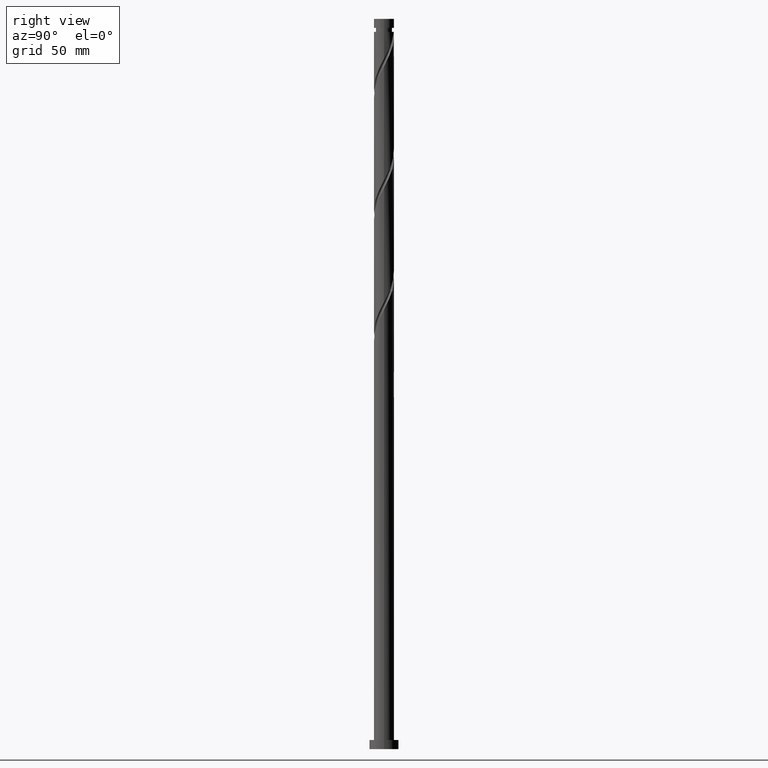
[diagram: clean part render]
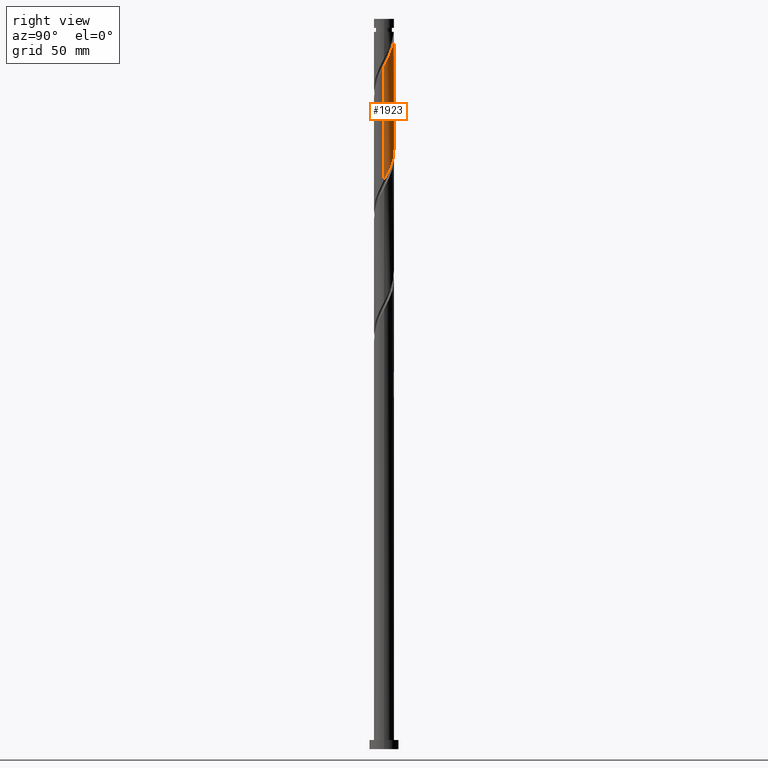
[diagram: same view with one face highlighted and labeled with its STEP entity id]
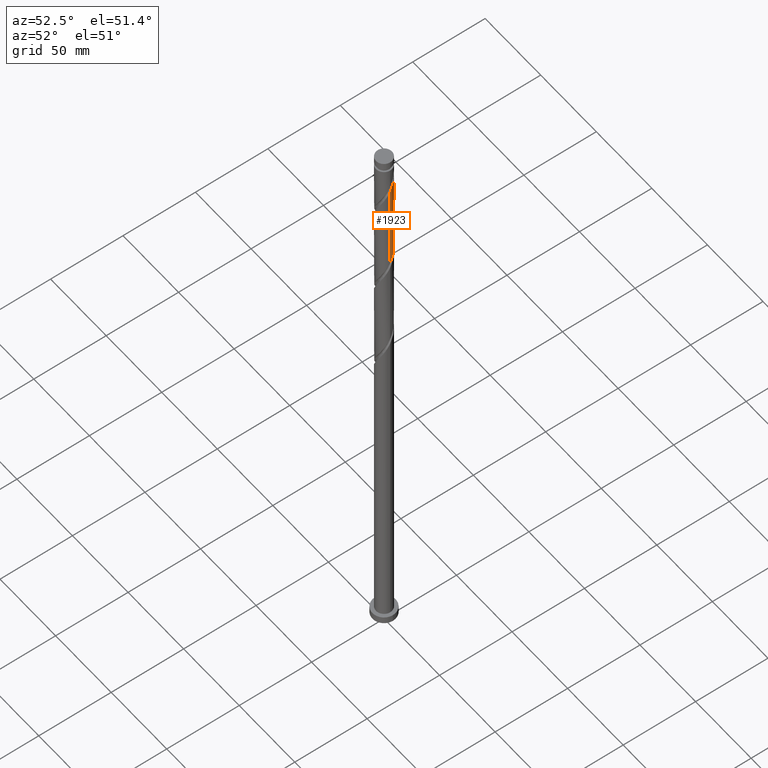
[diagram: same view with one face highlighted and labeled with its STEP entity id]
A machine part, right view. The second image highlights one B-rep face of the part: STEP entity #1923.
A second angle (auxiliary view) of the same face is appended — the face is thin or edge-on in the first view.
In plain terms, the highlighted cylindrical surface (edge-blend (fillet) strip) has radius 5.5 mm, axis along (-0, -0, -1).
Its self-contained STEP definition (entity closure, byte-faithful):
#66 = CARTESIAN_POINT ( 'NONE',  ( -5.500000000000001776, -4.095865825262278103E-15, 344.9724859766018881 ) ) ;
#70 = CARTESIAN_POINT ( 'NONE',  ( -5.499999999999963585, 0.000000000000000000, 392.8470427330803432 ) ) ;
#95 = CARTESIAN_POINT ( 'NONE',  ( -4.120633835989480964, 3.642852836678778239, 337.2914871775248571 ) ) ;
#99 = CARTESIAN_POINT ( 'NONE',  ( 5.474877974583515439, 0.5250820539881335680, 375.0692649553025717 ) ) ;
#132 = VERTEX_POINT ( 'NONE', #191 ) ;
#164 = ORIENTED_EDGE ( 'NONE', *, *, #1800, .T. ) ;
#191 = CARTESIAN_POINT ( 'NONE',  ( 5.500000000000007994, -6.577302785092662656E-16, 374.0549328228921695 ) ) ;
#201 = LINE ( 'NONE', #1450, #1960 ) ;
#218 = DIRECTION ( 'NONE',  ( -1.000000000000000000, 0.000000000000000000, 0.000000000000000000 ) ) ;
#245 = CARTESIAN_POINT ( 'NONE',  ( -5.500000000000001776, -4.095865825262278103E-15, 344.9724859766018881 ) ) ;
#262 = EDGE_CURVE ( 'NONE', #1859, #279, #201, .T. ) ;
#274 = CARTESIAN_POINT ( 'NONE',  ( -2.808638240598027913, 4.764002515389932135, 333.9581538441915427 ) ) ;
#277 = CARTESIAN_POINT ( 'NONE',  ( 2.808638240598036351, 4.764002515389936576, 385.0692649553025149 ) ) ;
#279 = VERTEX_POINT ( 'NONE', #66 ) ;
#292 = CARTESIAN_POINT ( 'NONE',  ( -1.756770938335399102, 5.243846355816629945, 331.7359316219693710 ) ) ;
#358 = EDGE_CURVE ( 'NONE', #1859, #1747, #501, .T. ) ;
#427 = ORIENTED_EDGE ( 'NONE', *, *, #358, .T. ) ;
#436 = CARTESIAN_POINT ( 'NONE',  ( -1.094486180817285215, 5.390000000000004121, 392.8470427330803432 ) ) ;
#454 = CARTESIAN_POINT ( 'NONE',  ( 3.192173385116795714, 4.478842381615138812, 321.7359316219691436 ) ) ;
#457 = CARTESIAN_POINT ( 'NONE',  ( 1.756770938335405763, 5.243846355816634386, 387.2914871775248002 ) ) ;
#501 = CIRCLE ( 'NONE', #1761, 5.499999999999963585 ) ;
#519 = DIRECTION ( 'NONE',  ( -0.000000000000000000, -0.000000000000000000, -1.000000000000000000 ) ) ;
#523 = CARTESIAN_POINT ( 'NONE',  ( 5.419689626847361552, 1.100514916679632860, 376.1803760664137712 ) ) ;
#568 = CARTESIAN_POINT ( 'NONE',  ( 5.500000000000000000, 0.3133555559553879433, 312.2447439526531525 ) ) ;
#570 = DIRECTION ( 'NONE',  ( -0.000000000000000000, -0.000000000000000000, -1.000000000000000000 ) ) ;
#571 = CARTESIAN_POINT ( 'NONE',  ( 5.072446488125613939, 2.203282859347249545, 378.4025982886359998 ) ) ;
#600 = CARTESIAN_POINT ( 'NONE',  ( 0.05007498170499220108, 5.499772040385614957, 390.6248205108581146 ) ) ;
#609 = CARTESIAN_POINT ( 'NONE',  ( 2.721428081721633863, 4.814353324093288755, 322.8470427330804000 ) ) ;
#612 = CARTESIAN_POINT ( 'NONE',  ( -0.5279743527352697141, 5.505035133043659989, 391.7359316219690868 ) ) ;
#615 = CARTESIAN_POINT ( 'NONE',  ( -1.094486180817285215, 5.390000000000004121, 392.8470427330803432 ) ) ;
#622 = CARTESIAN_POINT ( 'NONE',  ( 5.500000000000000000, 5.202048566391506910E-15, 311.6391526432685168 ) ) ;
#635 = AXIS2_PLACEMENT_3D ( 'NONE', #1151, #570, #855 ) ;
#666 = DIRECTION ( 'NONE',  ( -0.000000000000000000, -0.000000000000000000, -1.000000000000000000 ) ) ;
#705 = CARTESIAN_POINT ( 'NONE',  ( 0.000000000000000000, 0.000000000000000000, 392.8470427330803432 ) ) ;
#727 = CARTESIAN_POINT ( 'NONE',  ( -0.6281243161452666479, 5.494508947727561043, 329.5137093997470288 ) ) ;
#737 = CARTESIAN_POINT ( 'NONE',  ( 1.094486180817287657, 5.390000000000000568, 326.1803760664136576 ) ) ;
#748 = CARTESIAN_POINT ( 'NONE',  ( -4.503513097574002089, 3.209756768537233018, 338.4025982886359998 ) ) ;
#758 = CARTESIAN_POINT ( 'NONE',  ( 0.5279743527352899202, 5.505035133043651996, 327.2914871775248002 ) ) ;
#760 = CARTESIAN_POINT ( 'NONE',  ( 3.273196407501500982, 4.419975710105129352, 383.9581538441914859 ) ) ;
#766 = CARTESIAN_POINT ( 'NONE',  ( 5.031487450309294118, 2.295278364506417645, 316.1803760664137712 ) ) ;
#812 = LINE ( 'NONE', #1861, #1498 ) ;
#823 =( BOUNDED_CURVE ( )  B_SPLINE_CURVE ( 2, ( #245, #864, #1473, #1661, #1186, #1511, #1179, #748, #95, #1215, #1197, #274, #1338, #292, #1502, #727, #1999, #758, #737, #1803, #1372, #609, #454, #1349, #882, #1979, #1820, #766, #1063, #1988, #1969, #568, #1642 ),
 .UNSPECIFIED., .F., .F. ) 
 B_SPLINE_CURVE_WITH_KNOTS ( ( 3, 2, 2, 2, 2, 2, 2, 2, 2, 2, 2, 2, 2, 2, 2, 2, 3 ),
 ( 0.4295286012773114614, 0.4333333333333333481, 0.4416666666666666519, 0.4500000000000000111, 0.4583333333333333148, 0.4666666666666666741, 0.4749999999999999778, 0.4833333333333333370, 0.4916666666666666408, 0.5000000000000000000, 0.5083333333333333037, 0.5166666666666667185, 0.5250000000000000222, 0.5333333333333333259, 0.5416666666666666297, 0.5500000000000000444, 0.5545286012773112949 ),
 .UNSPECIFIED. ) 
 CURVE ( )  GEOMETRIC_REPRESENTATION_ITEM ( )  RATIONAL_B_SPLINE_CURVE ( ( 0.9066196499552243715, 0.9068171577856372068, 0.9090909090909361501, 0.9041108139711843128, 0.9090909090909361501, 0.9041108139711843128, 0.9090909090909361501, 0.9041108139711843128, 0.9090909090909361501, 0.9041108139711843128, 0.9090909090909361501, 0.9041108139711843128, 0.9090909090909361501, 0.9041108139711843128, 0.9090909090909361501, 0.9041108139711843128, 0.9090909090909361501, 0.9041108139711843128, 0.9090909090909361501, 0.9041108139711843128, 0.9090909090909361501, 0.9041108139711843128, 0.9090909090909361501, 0.9041108139711843128, 0.9090909090909361501, 0.9041108139711843128, 0.9090909090909361501, 0.9041108139711843128, 0.9090909090909361501, 0.9041108139711843128, 0.9090909090909361501, 0.9063845652764833671, 0.9066196499552243715 ) ) 
 REPRESENTATION_ITEM ( '' )  );
#845 = CYLINDRICAL_SURFACE ( 'NONE', #635, 5.500000000000000000 ) ;
#855 = DIRECTION ( 'NONE',  ( -1.000000000000000000, 0.000000000000000000, 0.000000000000000000 ) ) ;
#864 = CARTESIAN_POINT ( 'NONE',  ( -5.500000000000001776, 0.2631419960771254063, 344.4639374510378502 ) ) ;
#876 = CARTESIAN_POINT ( 'NONE',  ( 5.500000000000009770, 0.2631419960771226307, 374.5634813484562073 ) ) ;
#882 = CARTESIAN_POINT ( 'NONE',  ( 4.053620430246145823, 3.717278763758650406, 319.5137093997468583 ) ) ;
#905 = CARTESIAN_POINT ( 'NONE',  ( 4.120633835989489846, 3.642852836678779127, 381.7359316219692573 ) ) ;
#1063 = CARTESIAN_POINT ( 'NONE',  ( 5.215120016806767289, 1.747147163321217445, 315.0692649553026286 ) ) ;
#1093 = DIRECTION ( 'NONE',  ( -0.000000000000000000, -0.000000000000000000, -1.000000000000000000 ) ) ;
#1151 = CARTESIAN_POINT ( 'NONE',  ( 0.000000000000000000, 0.000000000000000000, 400.0000000000000000 ) ) ;
#1179 = CARTESIAN_POINT ( 'NONE',  ( -4.787979792849804461, 2.706519813942241282, 339.5137093997471425 ) ) ;
#1182 = CARTESIAN_POINT ( 'NONE',  ( 3.737754574404964725, 4.075948904820327456, 382.8470427330802863 ) ) ;
#1186 = CARTESIAN_POINT ( 'NONE',  ( -5.246068057486477976, 1.651898888013442424, 341.7359316219691436 ) ) ;
#1194 = ORIENTED_EDGE ( 'NONE', *, *, #1221, .F. ) ;
#1197 = CARTESIAN_POINT ( 'NONE',  ( -3.273196407501492100, 4.419975710105126687, 335.0692649553026286 ) ) ;
#1200 = CARTESIAN_POINT ( 'NONE',  ( 4.787979792849812455, 2.706519813942244390, 379.5137093997470288 ) ) ;
#1215 = CARTESIAN_POINT ( 'NONE',  ( -3.737754574404959396, 4.075948904820323904, 336.1803760664137144 ) ) ;
#1221 = EDGE_CURVE ( 'NONE', #132, #1747, #1987, .T. ) ;
#1311 = FACE_OUTER_BOUND ( 'NONE', #1659, .T. ) ;
#1338 = CARTESIAN_POINT ( 'NONE',  ( -2.282704589466713951, 5.003924435603280152, 332.8470427330803432 ) ) ;
#1349 = CARTESIAN_POINT ( 'NONE',  ( 3.662918688511955789, 4.143331439136995087, 320.6248205108582852 ) ) ;
#1361 = CARTESIAN_POINT ( 'NONE',  ( 0.6281243161452697565, 5.494508947727569037, 389.5137093997470856 ) ) ;
#1372 = CARTESIAN_POINT ( 'NONE',  ( 2.191213045310460128, 5.044659095524817616, 323.9581538441913722 ) ) ;
#1374 = ORIENTED_EDGE ( 'NONE', *, *, #262, .F. ) ;
#1425 = VERTEX_POINT ( 'NONE', #622 ) ;
#1450 = CARTESIAN_POINT ( 'NONE',  ( -5.500000000000000000, 0.000000000000000000, 400.0000000000000000 ) ) ;
#1473 = CARTESIAN_POINT ( 'NONE',  ( -5.474877974583507445, 0.5250820539881385640, 343.9581538441914290 ) ) ;
#1498 = VECTOR ( 'NONE', #1093, 1000.000000000000000 ) ;
#1502 = CARTESIAN_POINT ( 'NONE',  ( -1.192447627240333041, 5.369177651772091941, 330.6248205108580578 ) ) ;
#1511 = CARTESIAN_POINT ( 'NONE',  ( -5.072446488125604169, 2.203282859347252209, 340.6248205108582283 ) ) ;
#1571 = ORIENTED_EDGE ( 'NONE', *, *, #1600, .F. ) ;
#1600 = EDGE_CURVE ( 'NONE', #279, #1425, #823, .T. ) ;
#1635 = CARTESIAN_POINT ( 'NONE',  ( 5.500000000000007994, -6.577302785092662656E-16, 374.0549328228921695 ) ) ;
#1642 = CARTESIAN_POINT ( 'NONE',  ( 5.500000000000000000, 5.202048566391506910E-15, 311.6391526432685168 ) ) ;
#1659 = EDGE_LOOP ( 'NONE', ( #1194, #164, #1571, #1374, #427 ) ) ;
#1661 = CARTESIAN_POINT ( 'NONE',  ( -5.419689626847354447, 1.100514916679633748, 342.8470427330804000 ) ) ;
#1747 = VERTEX_POINT ( 'NONE', #615 ) ;
#1755 = CARTESIAN_POINT ( 'NONE',  ( 5.246068057486485969, 1.651898888013441535, 377.2914871775247434 ) ) ;
#1761 = AXIS2_PLACEMENT_3D ( 'NONE', #705, #666, #218 ) ;
#1800 = EDGE_CURVE ( 'NONE', #132, #1425, #812, .T. ) ;
#1803 = CARTESIAN_POINT ( 'NONE',  ( 1.660998008899287059, 5.274964866956348253, 325.0692649553025717 ) ) ;
#1820 = CARTESIAN_POINT ( 'NONE',  ( 4.737904811144816541, 2.793252226443360797, 317.2914871775248571 ) ) ;
#1822 = CARTESIAN_POINT ( 'NONE',  ( 1.192447627240339925, 5.369177651772102600, 388.4025982886357724 ) ) ;
#1833 = CARTESIAN_POINT ( 'NONE',  ( 2.282704589466719280, 5.003924435603286369, 386.1803760664137144 ) ) ;
#1859 = VERTEX_POINT ( 'NONE', #70 ) ;
#1861 = CARTESIAN_POINT ( 'NONE',  ( 5.500000000000000000, 6.735557395310441037E-16, 400.0000000000000000 ) ) ;
#1923 = ADVANCED_FACE ( 'NONE', ( #1311 ), #845, .T. ) ;
#1960 = VECTOR ( 'NONE', #519, 1000.000000000000000 ) ;
#1969 = CARTESIAN_POINT ( 'NONE',  ( 5.464409452811949564, 0.6246833854196899294, 312.8470427330804000 ) ) ;
#1979 = CARTESIAN_POINT ( 'NONE',  ( 4.444322171980340741, 3.291226088380304393, 318.4025982886359429 ) ) ;
#1987 =( BOUNDED_CURVE ( )  B_SPLINE_CURVE ( 2, ( #1635, #876, #99, #523, #1755, #571, #1200, #1991, #905, #1182, #760, #277, #1833, #457, #1822, #1361, #600, #612, #436 ),
 .UNSPECIFIED., .F., .T. ) 
 B_SPLINE_CURVE_WITH_KNOTS ( ( 3, 2, 2, 2, 2, 2, 2, 2, 2, 3 ),
 ( 0.6795286012773115170, 0.6833333333333333481, 0.6916666666666666519, 0.6999999999999998446, 0.7083333333333331483, 0.7166666666666665630, 0.7249999999999998668, 0.7333333333333331705, 0.7416666666666664742, 0.7499999999999997780 ),
 .UNSPECIFIED. ) 
 CURVE ( )  GEOMETRIC_REPRESENTATION_ITEM ( )  RATIONAL_B_SPLINE_CURVE ( ( 0.9066196499552308108, 0.9068171577856435350, 0.9090909090909424783, 0.9041108139711906411, 0.9090909090909424783, 0.9041108139711906411, 0.9090909090909424783, 0.9041108139711906411, 0.9090909090909424783, 0.9041108139711906411, 0.9090909090909424783, 0.9041108139711906411, 0.9090909090909424783, 0.9041108139711906411, 0.9090909090909424783, 0.9041108139711906411, 0.9090909090909424783, 0.9041108139711907521, 0.9090909090909423673 ) ) 
 REPRESENTATION_ITEM ( '' )  );
#1988 = CARTESIAN_POINT ( 'NONE',  ( 5.398752583304238684, 1.199015962136021907, 313.9581538441914290 ) ) ;
#1991 = CARTESIAN_POINT ( 'NONE',  ( 4.503513097574011859, 3.209756768537233906, 380.6248205108581715 ) ) ;
#1999 = CARTESIAN_POINT ( 'NONE',  ( -0.05007498170498810713, 5.499772040385605187, 328.4025982886359429 ) ) ;